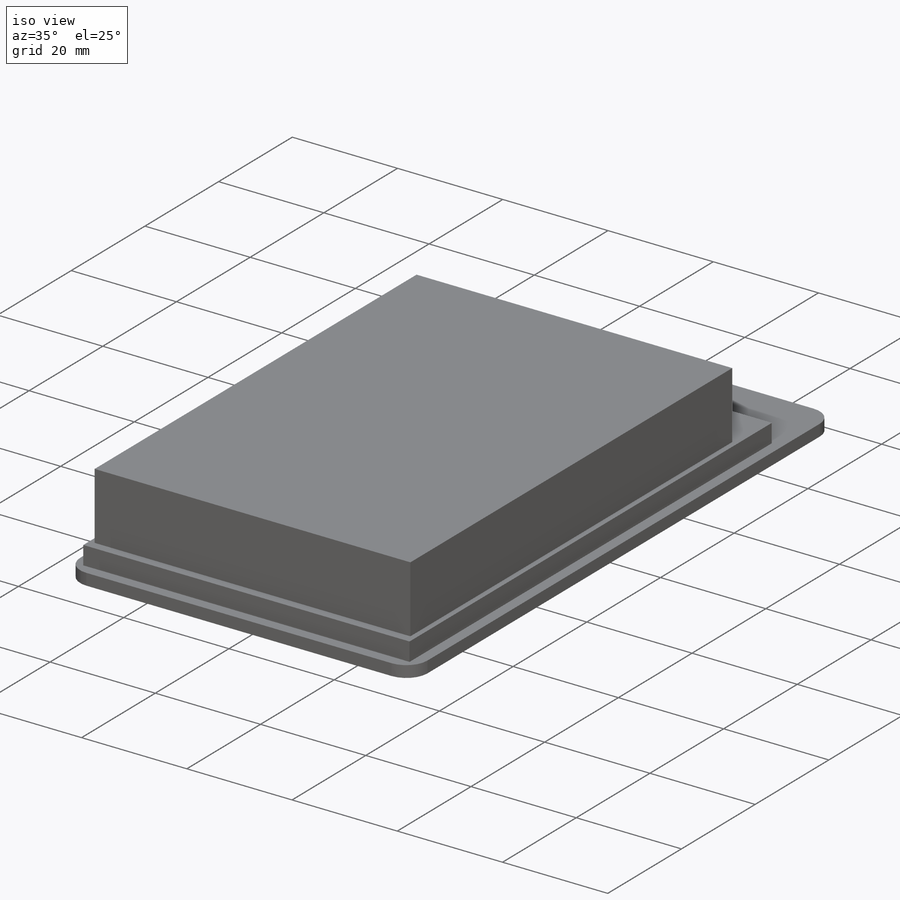
[diagram: iso view]
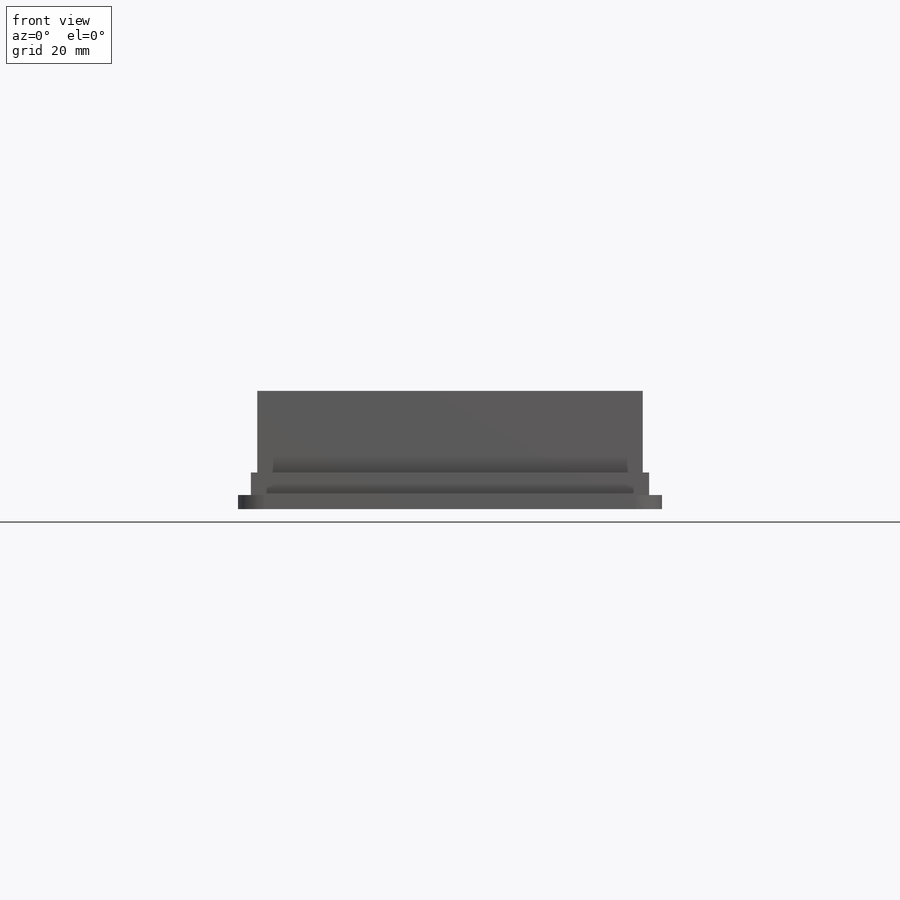
[diagram: front view]
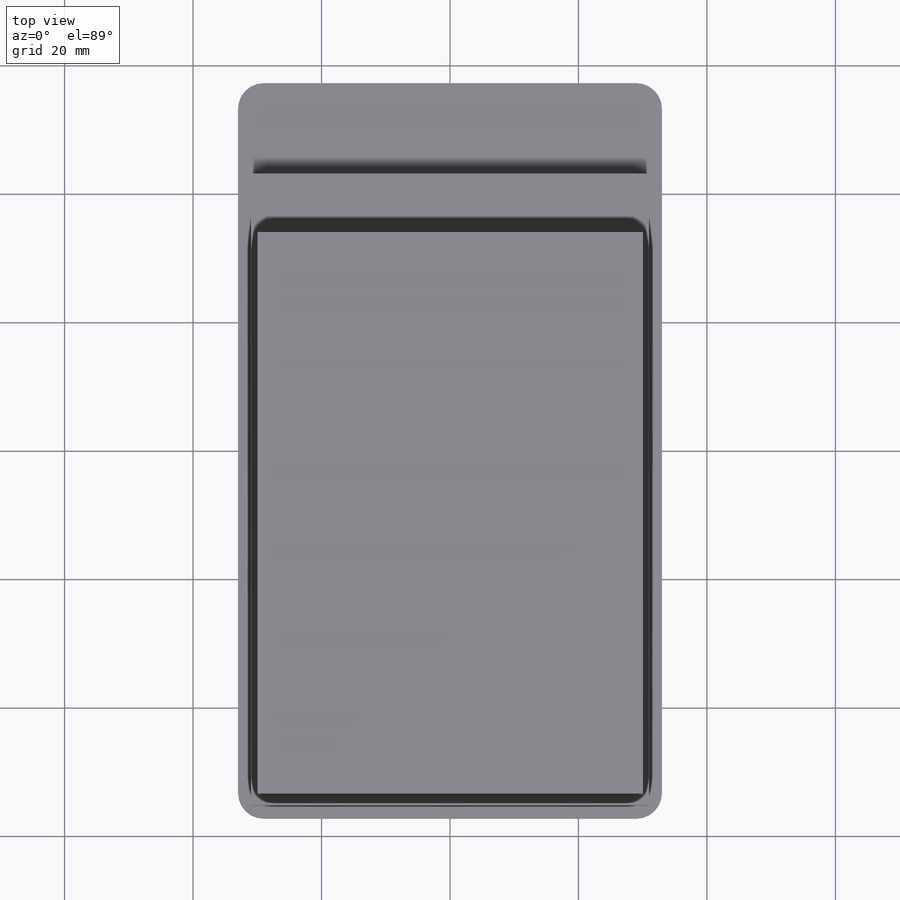
[diagram: top view]
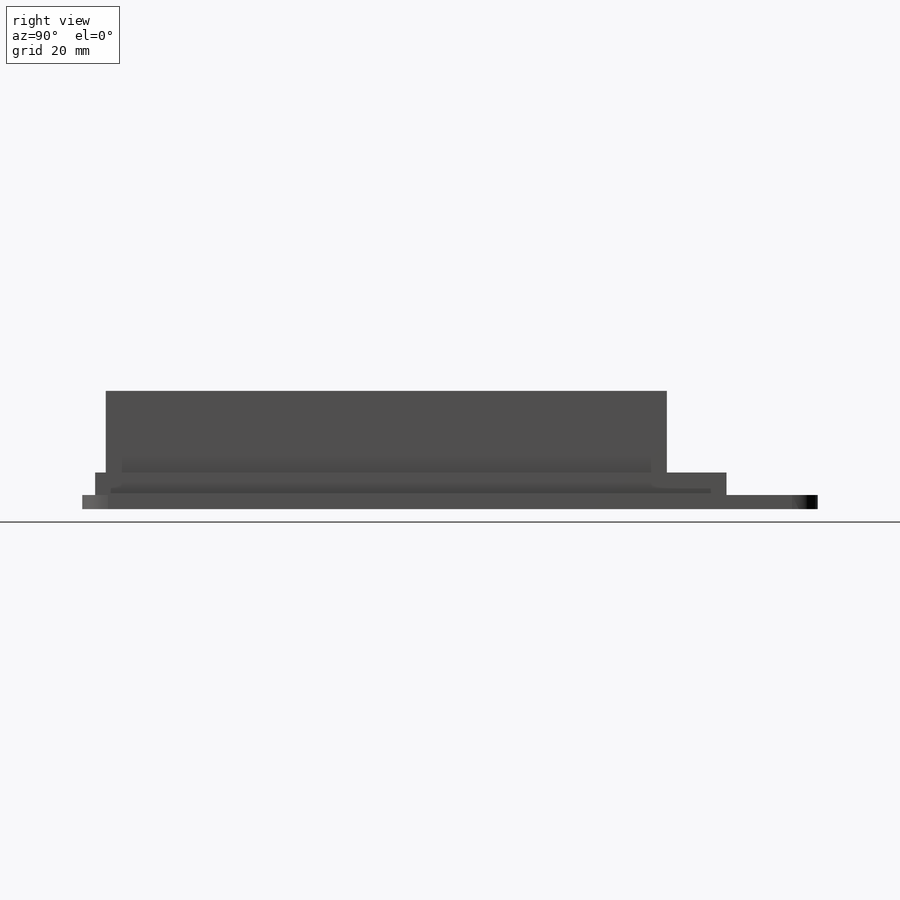
[diagram: right view]
SOLIDWORKS PART (.sldprt)
format: sldprt  version: not decoded by parser v0  size: 164,864 bytes
history: native  units: mm
features: sketch x3, extrude x3, material x1, fillet x1 (+12 scaffold rows collapsed)
feature tree (20):
  scaffold x12  (default folders/planes/origin — collapsed)
  material  "재질 <지정안함>"
  sketch  "스케치1"  dims[D1=66.0mm D2=33.0mm D3=114.5mm D4=57.25mm]
  extrude  "보스-돌출1"  Depth=2.2mm
  fillet  "필렛1"  Radius=4mm
  sketch  "스케치2"  dims[D1=62.0mm D2=31.0mm D3=2.0mm D4=98.3mm]
  extrude  "보스-돌출2"  Depth=3.5mm
  sketch  "스케치3"  dims[D1=1.65mm D2=60.0mm D3=30.0mm]
  extrude  "보스-돌출3"  Depth=12.7mm
decode coverage: 7 of 7 modeling features carry decoded parameters
note: suppression state not decoded; provenance and decode notes live in map.json
